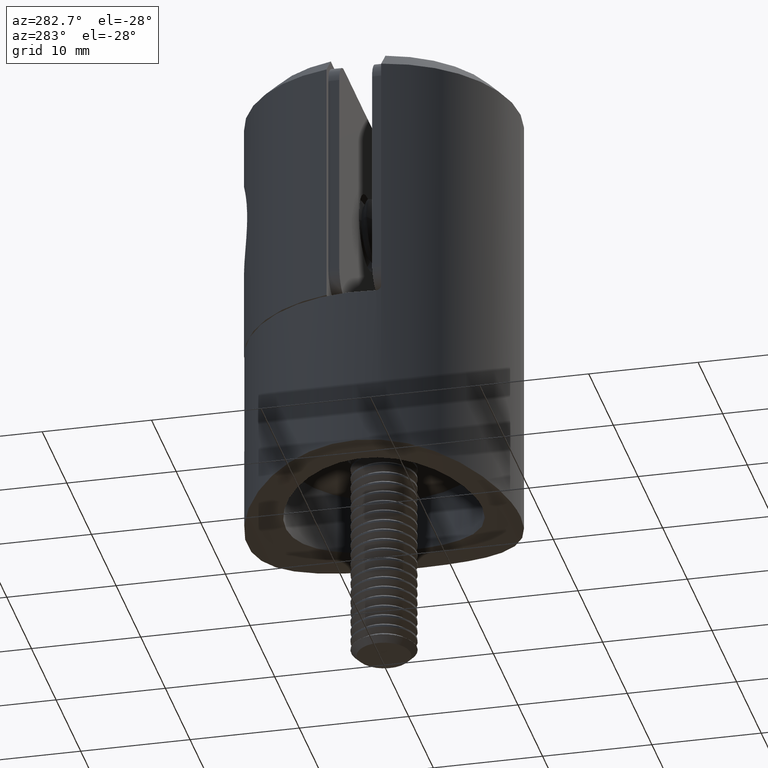
[diagram: clean part render]
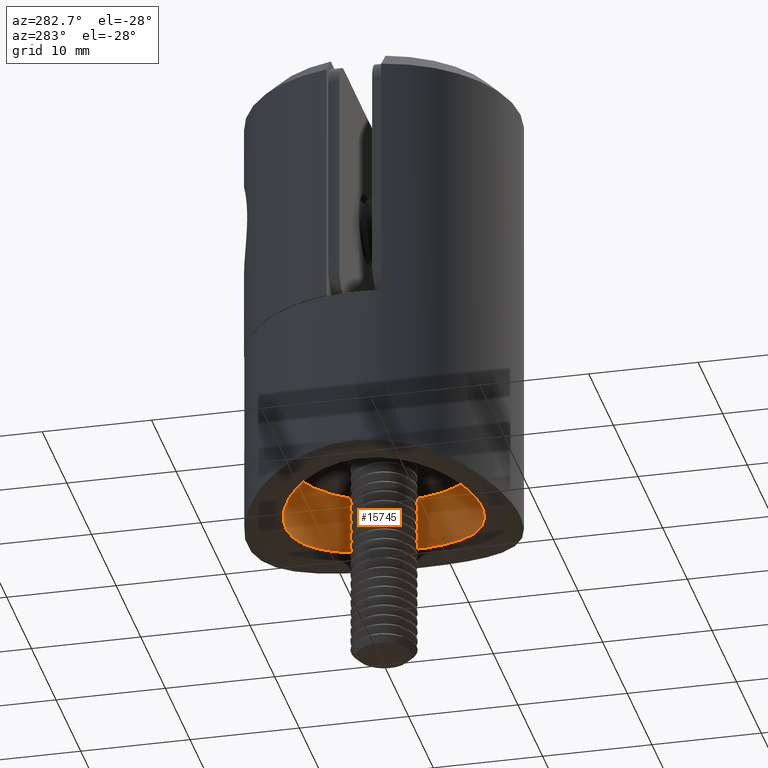
[diagram: same view with one face highlighted and labeled with its STEP entity id]
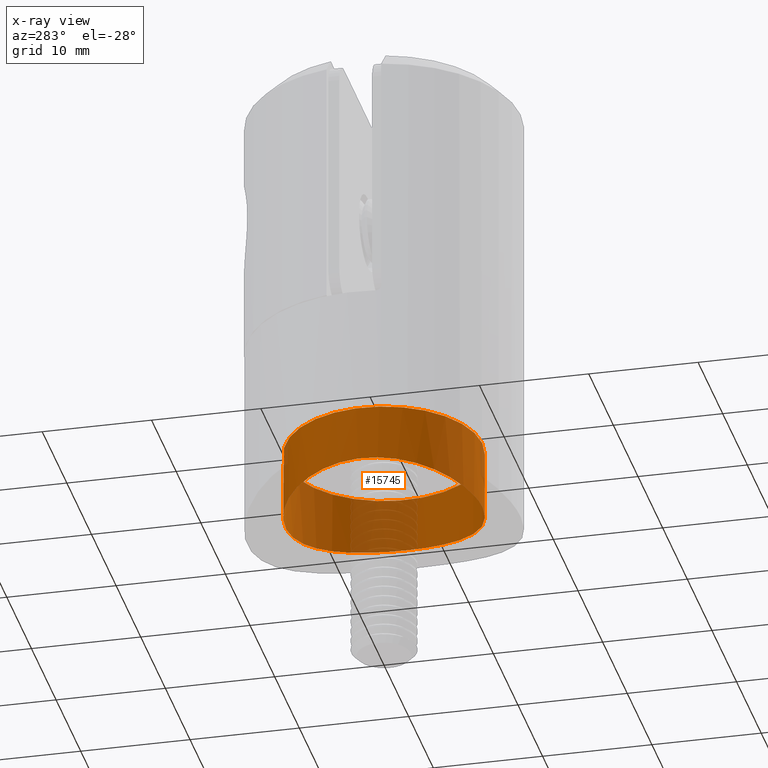
[diagram: x-ray of the same camera — body ghosted, the highlighted face saturated]
A machine part, auxiliary view. The second image highlights one B-rep face of the part: STEP entity #15745.
The next image is the same camera in x-ray: the body ghosted, the highlighted face saturated — about 17% of this face is hidden behind the body in this view.
In plain terms, the highlighted cylindrical surface (bore or boss wall) has radius 9 mm, axis along (0, -0, 1).
Its self-contained STEP definition (entity closure, byte-faithful):
#32 = CARTESIAN_POINT ( 'NONE',  ( 0.000000000000000000, 8.750999659232643128E-18, 5.100000000000000533 ) ) ;
#318 = CARTESIAN_POINT ( 'NONE',  ( 1.185822052375740343, -8.940945296865521641, -1.355963288929341592 ) ) ;
#333 = EDGE_LOOP ( 'NONE', ( #385 ) ) ;
#385 = ORIENTED_EDGE ( 'NONE', *, *, #2343, .F. ) ;
#549 = CARTESIAN_POINT ( 'NONE',  ( 8.538774403114143041, 2.905219611666121082, -0.1352452541652090223 ) ) ;
#700 = CARTESIAN_POINT ( 'NONE',  ( -7.150411678394052117, -5.497470882763403566, -0.5012341789338921050 ) ) ;
#777 = CARTESIAN_POINT ( 'NONE',  ( -5.489248077110187474, -7.138247435269766683, -0.8565750722591767286 ) ) ;
#852 = CARTESIAN_POINT ( 'NONE',  ( -8.523417378248598908, -2.905080082330754099, -0.1389306601383623885 ) ) ;
#2105 = CARTESIAN_POINT ( 'NONE',  ( 4.001985308507586048, -8.082779981349148102, -1.102682765100396978 ) ) ;
#2175 = CARTESIAN_POINT ( 'NONE',  ( 8.421668585497533499, -3.187678065357707258, -0.1677500759989492551 ) ) ;
#2253 = CARTESIAN_POINT ( 'NONE',  ( 8.941615196116021735, -1.182970758504127140, -0.01758196660093610392 ) ) ;
#2329 = CARTESIAN_POINT ( 'NONE',  ( -3.252606517456513302E-16, -9.000000000000001776, -1.374619898253298667 ) ) ;
#2343 = EDGE_CURVE ( 'NONE', #20523, #20523, #11895, .T. ) ;
#2475 = CARTESIAN_POINT ( 'NONE',  ( 5.496716112329071535, 7.150413148691908027, -0.8582410347823666852 ) ) ;
#2553 = CARTESIAN_POINT ( 'NONE',  ( 4.524716325586240373, 7.801874030609413424, -1.024988187403319317 ) ) ;
#2556 = AXIS2_PLACEMENT_3D ( 'NONE', #6913, #7667, #14695 ) ;
#2630 = CARTESIAN_POINT ( 'NONE',  ( -2.344530190291385985, -8.709286904477878011, -1.285047345396048701 ) ) ;
#2702 = CARTESIAN_POINT ( 'NONE',  ( 2.913594913920761531, 8.535557776549191900, -1.232500696866663636 ) ) ;
#2768 = CARTESIAN_POINT ( 'NONE',  ( -8.925883202786161874, 1.190312538106021778, -0.02205456905166851625 ) ) ;
#3434 = DIRECTION ( 'NONE',  ( 0.000000000000000000, -1.000000000000000000, 0.000000000000000000 ) ) ;
#3934 = CARTESIAN_POINT ( 'NONE',  ( 8.767144284894179407, -2.055518577043168094, -0.06873959641688333344 ) ) ;
#4091 = CARTESIAN_POINT ( 'NONE',  ( 8.070324007166149727, 3.994528449558298444, -0.2646407739215885790 ) ) ;
#4245 = CARTESIAN_POINT ( 'NONE',  ( -7.139971559587332095, 5.486982158268125964, -0.5025906670222899386 ) ) ;
#4322 = CARTESIAN_POINT ( 'NONE',  ( 7.142291056877425603, 5.483959806165431772, -0.5020311841665126007 ) ) ;
#4396 = CARTESIAN_POINT ( 'NONE',  ( -7.314278040639221601, 5.252290663637790402, -0.4599944814719212349 ) ) ;
#4473 = CARTESIAN_POINT ( 'NONE',  ( -1.186796273005575442, -8.940918006786423788, -1.355952779559454813 ) ) ;
#4549 = CARTESIAN_POINT ( 'NONE',  ( -3.992972265698331302, 8.087099378350417922, -1.103895169293614309 ) ) ;
#5681 = CARTESIAN_POINT ( 'NONE',  ( 6.777056205733043903, -5.950782728535904731, -0.5900810819314219469 ) ) ;
#5908 = CARTESIAN_POINT ( 'NONE',  ( 8.084037403959721146, -3.998938871832793840, -0.2614169671120162297 ) ) ;
#6060 = CARTESIAN_POINT ( 'NONE',  ( -8.696334846089261106, -2.337069603858380251, -0.08936329893428017479 ) ) ;
#6133 = CARTESIAN_POINT ( 'NONE',  ( -7.801771437058368619, 4.524736934712957570, -0.3373987164168645858 ) ) ;
#6214 = CARTESIAN_POINT ( 'NONE',  ( 6.570573775608319345, 6.157421072802897299, -0.6346853459270830333 ) ) ;
#6295 = CARTESIAN_POINT ( 'NONE',  ( -8.984944741643683841, 0.5991684886256979370, -0.004503869552738098102 ) ) ;
#6360 = FACE_OUTER_BOUND ( 'NONE', #333, .T. ) ;
#6364 = CARTESIAN_POINT ( 'NONE',  ( 5.947380817729807312, 6.780395080150963594, -0.7692362906615368701 ) ) ;
#6913 = CARTESIAN_POINT ( 'NONE',  ( 0.000000000000000000, 0.000000000000000000, 15.00000000000000000 ) ) ;
#7479 = CARTESIAN_POINT ( 'NONE',  ( 7.148476775443497466, -5.499914224820166453, -0.5016990754363696015 ) ) ;
#7555 = CARTESIAN_POINT ( 'NONE',  ( 6.158374507734751369, -6.569589020399924095, -0.7236932238464887091 ) ) ;
#7636 = CARTESIAN_POINT ( 'NONE',  ( 8.999613545077416177, -0.5966883446060962104, -0.0001153596561852563367 ) ) ;
#7667 = DIRECTION ( 'NONE',  ( -0.000000000000000000, -8.839393595184489370E-19, 1.000000000000000000 ) ) ;
#7864 = CARTESIAN_POINT ( 'NONE',  ( 2.352453121932788882, 8.707297283988934211, -1.284443533166231610 ) ) ;
#7940 = CARTESIAN_POINT ( 'NONE',  ( -4.004150485387577341, -8.081598134896680108, -1.102356813288286830 ) ) ;
#8014 = CARTESIAN_POINT ( 'NONE',  ( -8.423638435984464934, -3.182536749231318574, -0.1671971833313853906 ) ) ;
#8093 = CARTESIAN_POINT ( 'NONE',  ( 3.997935506280577478, 8.084633174538929268, -1.103206391467732361 ) ) ;
#9277 = CARTESIAN_POINT ( 'NONE',  ( 8.693882228435573012, -2.346004742452135527, -0.09007234467078339968 ) ) ;
#9358 = CARTESIAN_POINT ( 'NONE',  ( 9.000382642342637851, 0.5849728478716058611, 0.0001142215727207404510 ) ) ;
#9433 = CARTESIAN_POINT ( 'NONE',  ( 0.5982730125851156711, -9.000000000000001776, -1.374619898253298667 ) ) ;
#9510 = CARTESIAN_POINT ( 'NONE',  ( 7.792504131435094017, 4.512567614622505552, -0.3384638582722340749 ) ) ;
#9587 = CARTESIAN_POINT ( 'NONE',  ( 7.641688997561237429, 4.763400890828465073, -0.3776443783837490908 ) ) ;
#9666 = CARTESIAN_POINT ( 'NONE',  ( -6.778517652214133271, -5.949128868562413963, -0.5897457015168182659 ) ) ;
#9743 = CARTESIAN_POINT ( 'NONE',  ( -1.173659102718640268, 8.928039983829982873, -1.352195966243980418 ) ) ;
#9811 = CARTESIAN_POINT ( 'NONE',  ( -0.5982730125851184466, -9.000000000000003553, -1.374619898253298667 ) ) ;
#9886 = CARTESIAN_POINT ( 'NONE',  ( 0.5936280103364708349, 8.985301886248130643, -1.370010749449922738 ) ) ;
#11207 = CARTESIAN_POINT ( 'NONE',  ( 8.709848007106298695, 2.342366946694560248, -0.08554039584317563172 ) ) ;
#11360 = CARTESIAN_POINT ( 'NONE',  ( -7.809001942142345776, -4.513320501023894593, -0.3355498310921940508 ) ) ;
#11431 = CARTESIAN_POINT ( 'NONE',  ( -9.000167046277798732, -0.5907093811988471943, 4.986455872365255814E-05 ) ) ;
#11508 = CARTESIAN_POINT ( 'NONE',  ( -1.468693937511236003, 8.884351151924308354, -1.338639035645577069 ) ) ;
#11586 = CARTESIAN_POINT ( 'NONE',  ( -5.493494837923749152, 7.152962408053002541, -0.8588605877377899489 ) ) ;
#11660 = CARTESIAN_POINT ( 'NONE',  ( -5.943375088400154382, -6.764814369794475368, -0.7680904809346151829 ) ) ;
#11895 = B_SPLINE_CURVE_WITH_KNOTS ( 'NONE', 3,
 ( #2329, #9433, #318, #12774, #16678, #18311, #14808, #2105, #14731, #14585, #18385, #19987, #7555, #5681, #7479, #12931, #5908, #2175, #16522, #9277, #3934, #2253, #7636, #9358, #21884, #11207, #549, #13011, #4091, #9510, #9587, #15111, #4322, #18541, #6214, #6364, #2475, #2553, #8093, #2702, #7864, #22186, #13230, #9886, #16752, #20416, #9743, #11508, #15192, #18686, #4549, #16829, #11586, #18610, #13450, #18850, #4245, #4396, #6133, #22109, #20345, #16909, #20567, #2768, #6295, #22328, #11431, #22030, #13370, #6060, #852, #8014, #15265, #11360, #700, #9666, #13304, #11660, #777, #13154, #20499, #7940, #15040, #2630, #4473, #9811, #22259 ),
 .UNSPECIFIED., .T., .F.,
 ( 4, 2, 2, 2, 2, 2, 2, 2, 2, 2, 2, 2, 2, 2, 2, 2, 2, 2, 2, 2, 2, 2, 1, 2, 2, 2, 2, 2, 2, 2, 2, 2, 2, 2, 2, 2, 2, 2, 2, 2, 2, 2, 2, 4 ),
 ( 0.000000000000000000, 0.001768498440205643063, 0.002652747660308465462, 0.003536996880411287427, 0.005305495320616930056, 0.006189744540719749853, 0.007073993760822569650, 0.008842492201028210111, 0.01061099064123384970, 0.01149523986133667124, 0.01237948908143948930, 0.01414798752164513236, 0.01591648596185077716, 0.01768498440205641675, 0.01856923362215923828, 0.01945348284226206328, 0.02033773206236488135, 0.02122198128246770288, 0.02299047972267334941, 0.02475897816287898900, 0.02652747660308463554, 0.02741172582318745360, 0.02829597504329027513, 0.02918022426339309666, 0.03006447348349592166, 0.03183297192370156820, 0.03360147036390720432, 0.03536996880411284738, 0.03625421802421566891, 0.03713846724431849045, 0.03890696568452414045, 0.04067546412472979045, 0.04155971334483261198, 0.04244396256493544045, 0.04421246100514109045, 0.04509671022524391198, 0.04598095944534673352, 0.04774945788555238352, 0.04951795632575803352, 0.05040220554586085505, 0.05128645476596368352, 0.05305495320616932658, 0.05482345164637497659, 0.05659195008658062659 ),
 .UNSPECIFIED. ) ;
#12106 = CIRCLE ( 'NONE', #13834, 9.000000000000000000 ) ;
#12774 = CARTESIAN_POINT ( 'NONE',  ( 2.051896141837048049, -8.767918305303421533, -1.302994144599136872 ) ) ;
#12931 = CARTESIAN_POINT ( 'NONE',  ( 7.806731172558970755, -4.517158962094453223, -0.3361428341613331705 ) ) ;
#13011 = CARTESIAN_POINT ( 'NONE',  ( 8.197899314751980526, 3.725880989780903985, -0.2298372880235729221 ) ) ;
#13154 = CARTESIAN_POINT ( 'NONE',  ( -5.250954232695634438, -7.315303849041924877, -0.9004315388040798895 ) ) ;
#13230 = CARTESIAN_POINT ( 'NONE',  ( 1.184219211297574459, 8.926683785110379077, -1.351775075883669075 ) ) ;
#13304 = CARTESIAN_POINT ( 'NONE',  ( -6.159861680690958963, -6.568197091956854194, -0.7233818782611634024 ) ) ;
#13370 = CARTESIAN_POINT ( 'NONE',  ( -8.769059982288009536, -2.047194681354169710, -0.06818045629616274750 ) ) ;
#13450 = CARTESIAN_POINT ( 'NONE',  ( -6.567840302755916682, 6.160332588591958647, -0.6352939671100255037 ) ) ;
#13834 = AXIS2_PLACEMENT_3D ( 'NONE', #32, #21395, #3434 ) ;
#14191 = FACE_OUTER_BOUND ( 'NONE', #19329, .T. ) ;
#14585 = CARTESIAN_POINT ( 'NONE',  ( 5.249199105595239168, -7.316559113750023435, -0.9007461802484273417 ) ) ;
#14695 = DIRECTION ( 'NONE',  ( 0.000000000000000000, -1.000000000000000000, 0.000000000000000000 ) ) ;
#14731 = CARTESIAN_POINT ( 'NONE',  ( 4.517486191172507048, -7.806204748358019252, -1.026140150458848765 ) ) ;
#14808 = CARTESIAN_POINT ( 'NONE',  ( 3.185950833664215498, -8.422382201288217018, -1.200045842033330423 ) ) ;
#15040 = CARTESIAN_POINT ( 'NONE',  ( -2.919078547738528595, -8.533723100483625146, -1.231954195334064694 ) ) ;
#15111 = CARTESIAN_POINT ( 'NONE',  ( 7.316582407837613822, 5.249097127270075269, -0.4594269732762614189 ) ) ;
#15192 = CARTESIAN_POINT ( 'NONE',  ( -2.345185460562218882, 8.709485303202015416, -1.285103849322314584 ) ) ;
#15265 = CARTESIAN_POINT ( 'NONE',  ( -8.085590271733556378, -3.996014088971451717, -0.2609988287581045951 ) ) ;
#15745 = ADVANCED_FACE ( 'NONE', ( #6360, #14191 ), #17545, .F. ) ;
#15965 = ORIENTED_EDGE ( 'NONE', *, *, #21542, .T. ) ;
#16522 = CARTESIAN_POINT ( 'NONE',  ( 8.521262721946330387, -2.911255412546897237, -0.1395421424772234908 ) ) ;
#16678 = CARTESIAN_POINT ( 'NONE',  ( 2.338028052777481491, -8.696060686071160006, -1.281173493995741097 ) ) ;
#16752 = CARTESIAN_POINT ( 'NONE',  ( 0.003603735765757023601, 9.014442188886807372, -1.379149002117463274 ) ) ;
#16829 = CARTESIAN_POINT ( 'NONE',  ( -4.519628069823388827, 7.804890701078318394, -1.025793565766960569 ) ) ;
#16909 = CARTESIAN_POINT ( 'NONE',  ( -8.708336872535467066, 2.347561824798656271, -0.08597859580138686453 ) ) ;
#17545 = CYLINDRICAL_SURFACE ( 'NONE', #2556, 9.000000000000000000 ) ;
#18311 = CARTESIAN_POINT ( 'NONE',  ( 2.905101640344843528, -8.523393167669352621, -1.229723649333260171 ) ) ;
#18385 = CARTESIAN_POINT ( 'NONE',  ( 5.487324563882221007, -7.139733180868534923, -0.8569368033344592073 ) ) ;
#18491 = VERTEX_POINT ( 'NONE', #19668 ) ;
#18541 = CARTESIAN_POINT ( 'NONE',  ( 6.769832166260909112, 5.937634978461404422, -0.5895473491554165113 ) ) ;
#18610 = CARTESIAN_POINT ( 'NONE',  ( -5.944558304556906592, 6.782854999335880208, -0.7698084196527967826 ) ) ;
#18686 = CARTESIAN_POINT ( 'NONE',  ( -2.907996256950035718, 8.537479817810201155, -1.233070347075501116 ) ) ;
#18850 = CARTESIAN_POINT ( 'NONE',  ( -6.767252441991018053, 5.940577536168964556, -0.5901388382987962089 ) ) ;
#19329 = EDGE_LOOP ( 'NONE', ( #15965 ) ) ;
#19668 = CARTESIAN_POINT ( 'NONE',  ( 0.000000000000000000, -9.000000000000000000, 5.100000000000000533 ) ) ;
#19987 = CARTESIAN_POINT ( 'NONE',  ( 5.941807679533817499, -6.766198508971879910, -0.7684088403125616251 ) ) ;
#20345 = CARTESIAN_POINT ( 'NONE',  ( -8.537116890696029969, 2.910481124914769513, -0.1357251670767977425 ) ) ;
#20416 = CARTESIAN_POINT ( 'NONE',  ( -0.5853078899808622504, 8.985810387282127110, -1.370169791965520245 ) ) ;
#20499 = CARTESIAN_POINT ( 'NONE',  ( -4.519088603208958332, -7.805293154458333937, -1.025893128664962184 ) ) ;
#20523 = VERTEX_POINT ( 'NONE', #22434 ) ;
#20567 = CARTESIAN_POINT ( 'NONE',  ( -8.881973556949624538, 1.482258457675602603, -0.03507193694479349144 ) ) ;
#21395 = DIRECTION ( 'NONE',  ( -0.000000000000000000, -8.839393595184489370E-19, 1.000000000000000000 ) ) ;
#21542 = EDGE_CURVE ( 'NONE', #18491, #18491, #12106, .T. ) ;
#21884 = CARTESIAN_POINT ( 'NONE',  ( 8.941110661511325830, 1.185190009437001590, -0.01772927832229496958 ) ) ;
#22030 = CARTESIAN_POINT ( 'NONE',  ( -8.942243827038364401, -1.177264406628017790, -0.01739239610692626739 ) ) ;
#22109 = CARTESIAN_POINT ( 'NONE',  ( -8.080226599631158635, 4.007892623624734973, -0.2624709813235530653 ) ) ;
#22186 = CARTESIAN_POINT ( 'NONE',  ( 1.481083826779612256, 8.882238238119652962, -1.337987524051404753 ) ) ;
#22259 = CARTESIAN_POINT ( 'NONE',  ( -3.252606517456513302E-16, -9.000000000000001776, -1.374619898253298667 ) ) ;
#22328 = CARTESIAN_POINT ( 'NONE',  ( -8.999915939378457352, 0.2991641566214264802, -2.509272194480731757E-05 ) ) ;
#22434 = CARTESIAN_POINT ( 'NONE',  ( 0.000000000000000000, -9.000000000000000000, -1.374619898253298667 ) ) ;